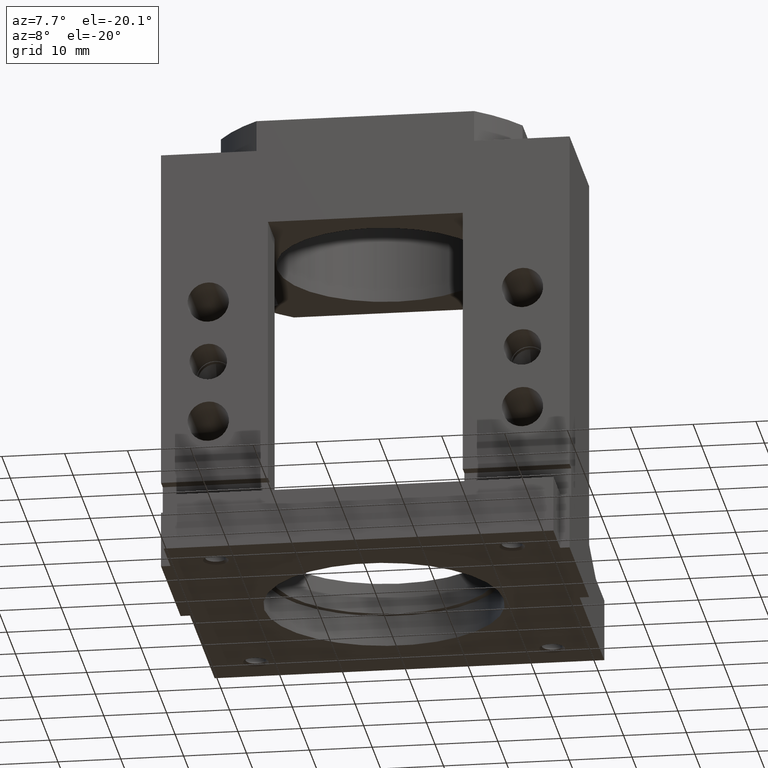
[diagram: clean part render]
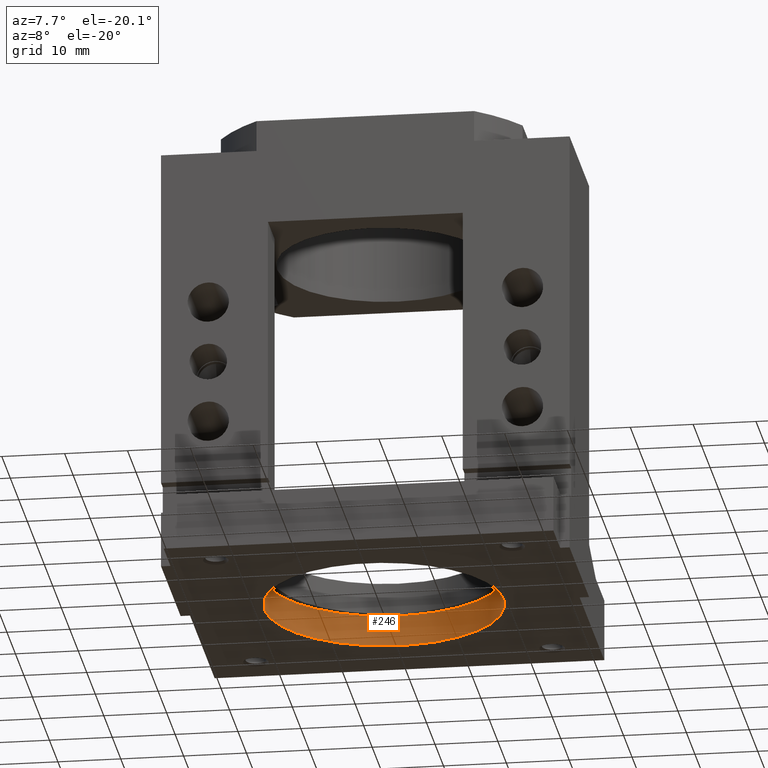
[diagram: same view with one face highlighted and labeled with its STEP entity id]
A machine part, auxiliary view. The second image highlights one B-rep face of the part: STEP entity #246.
In plain terms, the highlighted cylindrical surface (partial cylindrical patch) has radius 19.05 mm, axis along (-0, -0, -1).
Its self-contained STEP definition (entity closure, byte-faithful):
#76 = CIRCLE ( 'NONE', #3604, 19.05000000000000100 ) ;
#229 = EDGE_CURVE ( 'NONE', #814, #796, #3594, .T. ) ;
#231 = EDGE_CURVE ( 'NONE', #710, #713, #76, .T. ) ;
#246 = ADVANCED_FACE ( 'NONE', ( #3246 ), #3247, .F. ) ;
#425 = EDGE_CURVE ( 'NONE', #713, #796, #3422, .T. ) ;
#428 = EDGE_CURVE ( 'NONE', #710, #814, #3423, .T. ) ;
#710 = VERTEX_POINT ( 'NONE', #2625 ) ;
#713 = VERTEX_POINT ( 'NONE', #2622 ) ;
#796 = VERTEX_POINT ( 'NONE', #2523 ) ;
#814 = VERTEX_POINT ( 'NONE', #2502 ) ;
#1106 = ORIENTED_EDGE ( 'NONE', *, *, #229, .T. ) ;
#1107 = ORIENTED_EDGE ( 'NONE', *, *, #231, .F. ) ;
#1108 = ORIENTED_EDGE ( 'NONE', *, *, #425, .F. ) ;
#1109 = ORIENTED_EDGE ( 'NONE', *, *, #428, .T. ) ;
#1531 = AXIS2_PLACEMENT_3D ( 'NONE', #2063, #2062, #2060 ) ;
#1578 = DIRECTION ( 'NONE',  ( -1.000000000000000000, 0.0000000000000000000, 0.0000000000000000000 ) ) ;
#1579 = DIRECTION ( 'NONE',  ( 0.0000000000000000000, 0.0000000000000000000, -1.000000000000000000 ) ) ;
#1582 = CARTESIAN_POINT ( 'NONE',  ( 0.0000000000000000000, 0.0000000000000000000, 0.0000000000000000000 ) ) ;
#1587 = DIRECTION ( 'NONE',  ( -1.000000000000000000, 0.0000000000000000000, 0.0000000000000000000 ) ) ;
#1588 = DIRECTION ( 'NONE',  ( 0.0000000000000000000, 0.0000000000000000000, -1.000000000000000000 ) ) ;
#1590 = CARTESIAN_POINT ( 'NONE',  ( 0.0000000000000000000, 0.0000000000000000000, -5.000000000000000000 ) ) ;
#2060 = DIRECTION ( 'NONE',  ( -1.000000000000000000, 0.0000000000000000000, 0.0000000000000000000 ) ) ;
#2062 = DIRECTION ( 'NONE',  ( -0.0000000000000000000, -0.0000000000000000000, -1.000000000000000000 ) ) ;
#2063 = CARTESIAN_POINT ( 'NONE',  ( 0.0000000000000000000, 0.0000000000000000000, 0.0000000000000000000 ) ) ;
#2140 = EDGE_LOOP ( 'NONE', ( #1108, #1107, #1109, #1106 ) ) ;
#2502 = CARTESIAN_POINT ( 'NONE',  ( -19.05000000000000100, 0.0000000000000000000, -5.000000000000000000 ) ) ;
#2523 = CARTESIAN_POINT ( 'NONE',  ( 19.05000000000000100, 2.332952152375708000E-015, -5.000000000000000000 ) ) ;
#2622 = CARTESIAN_POINT ( 'NONE',  ( 19.05000000000000100, 2.332952152375708000E-015, 0.0000000000000000000 ) ) ;
#2625 = CARTESIAN_POINT ( 'NONE',  ( -19.05000000000000100, 0.0000000000000000000, 0.0000000000000000000 ) ) ;
#2933 = DIRECTION ( 'NONE',  ( -0.0000000000000000000, -0.0000000000000000000, -1.000000000000000000 ) ) ;
#2935 = CARTESIAN_POINT ( 'NONE',  ( -19.05000000000000100, 0.0000000000000000000, 0.0000000000000000000 ) ) ;
#2943 = DIRECTION ( 'NONE',  ( -0.0000000000000000000, -0.0000000000000000000, -1.000000000000000000 ) ) ;
#2944 = CARTESIAN_POINT ( 'NONE',  ( 19.05000000000000100, 2.332952152375708000E-015, 0.0000000000000000000 ) ) ;
#3246 = FACE_OUTER_BOUND ( 'NONE', #2140, .T. ) ;
#3247 = CYLINDRICAL_SURFACE ( 'NONE', #1531, 19.05000000000000100 ) ;
#3422 = LINE ( 'NONE', #2944, #3777 ) ;
#3423 = LINE ( 'NONE', #2935, #3781 ) ;
#3594 = CIRCLE ( 'NONE', #3606, 19.05000000000000100 ) ;
#3604 = AXIS2_PLACEMENT_3D ( 'NONE', #1582, #1579, #1578 ) ;
#3606 = AXIS2_PLACEMENT_3D ( 'NONE', #1590, #1588, #1587 ) ;
#3777 = VECTOR ( 'NONE', #2943, 1000.000000000000000 ) ;
#3781 = VECTOR ( 'NONE', #2933, 1000.000000000000000 ) ;